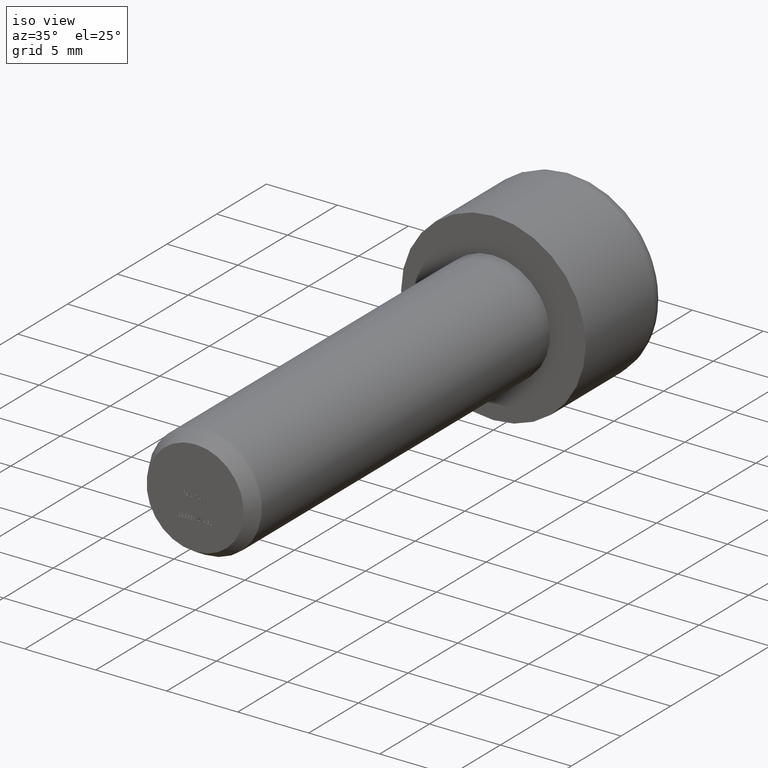
[diagram: clean part render]
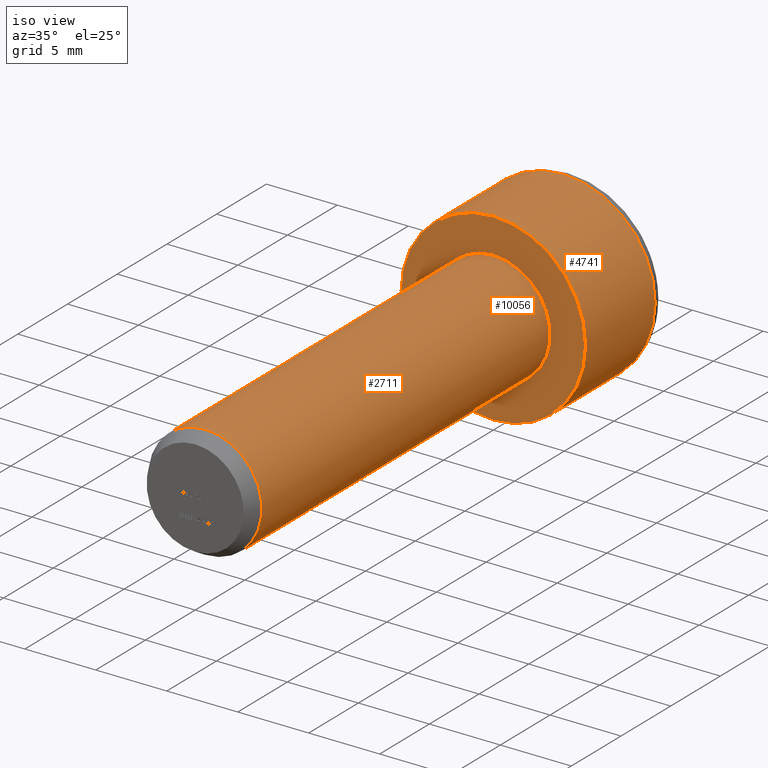
[diagram: same view with one multi-face feature highlighted, each face labeled with its STEP entity id]
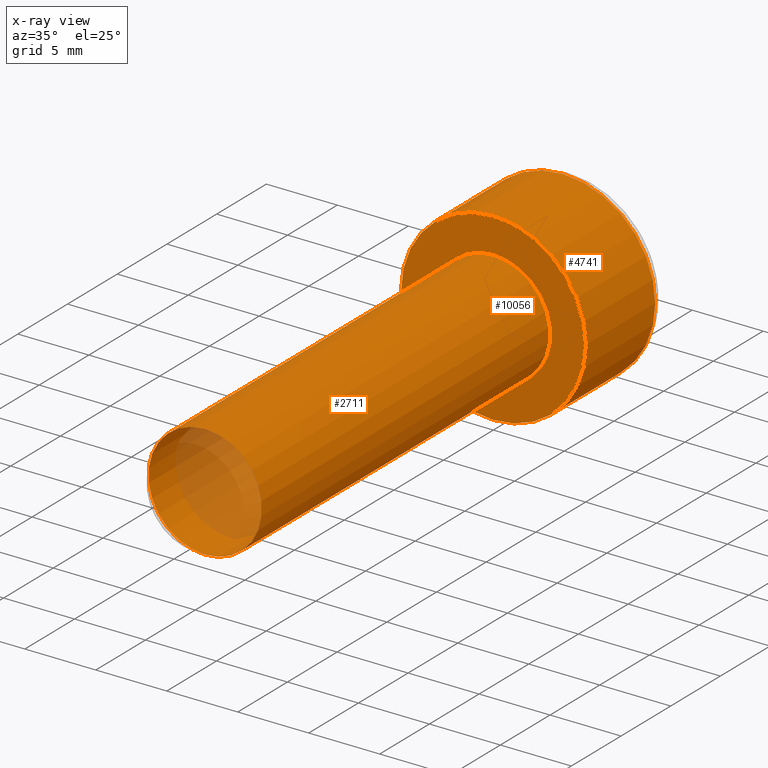
[diagram: x-ray of the same camera — body ghosted, the whole feature saturated]
A machine part, iso view. The highlighted faces form ONE feature: a stepped (counterbored) hole: 2 coaxial cylindrical walls of radii 4 -> 6.5 mm joined by 1 annular planar shoulder face(s). The faces share edges in the B-rep.
The next image is the same camera in x-ray: the body ghosted and the whole hole feature saturated, so the bore chain is visible through the body.
Their STEP definitions:
[1] entity #4741 (Cylinder):
#1107 = CARTESIAN_POINT ( 'NONE',  ( 0.0000000000000000000, 7.000000000000000000, 6.500000000000000900 ) ) ;
#1279 = CYLINDRICAL_SURFACE ( 'NONE', #15521, 6.500000000000000900 ) ;
#1921 = DIRECTION ( 'NONE',  ( -0.0000000000000000000, -1.000000000000000000, -0.0000000000000000000 ) ) ;
#2041 = VERTEX_POINT ( 'NONE', #7377 ) ;
#3053 = VERTEX_POINT ( 'NONE', #1107 ) ;
#3080 = ORIENTED_EDGE ( 'NONE', *, *, #9122, .T. ) ;
#3296 = DIRECTION ( 'NONE',  ( 0.0000000000000000000, 0.0000000000000000000, 1.000000000000000000 ) ) ;
#3331 = CARTESIAN_POINT ( 'NONE',  ( 0.0000000000000000000, 7.000000000000000000, 0.0000000000000000000 ) ) ;
#3768 = EDGE_LOOP ( 'NONE', ( #7017 ) ) ;
#4275 = FACE_OUTER_BOUND ( 'NONE', #6326, .T. ) ;
#4741 = ADVANCED_FACE ( 'NONE', ( #4275, #5492 ), #1279, .T. ) ;
#5492 = FACE_OUTER_BOUND ( 'NONE', #3768, .T. ) ;
#6326 = EDGE_LOOP ( 'NONE', ( #3080 ) ) ;
#7017 = ORIENTED_EDGE ( 'NONE', *, *, #16244, .T. ) ;
#7377 = CARTESIAN_POINT ( 'NONE',  ( 0.0000000000000000000, 0.0000000000000000000, 6.500000000000000900 ) ) ;
#8380 = DIRECTION ( 'NONE',  ( 0.0000000000000000000, 0.0000000000000000000, -1.000000000000000000 ) ) ;
#9122 = EDGE_CURVE ( 'NONE', #3053, #3053, #9578, .T. ) ;
#9578 = CIRCLE ( 'NONE', #14846, 6.500000000000000900 ) ;
#10929 = DIRECTION ( 'NONE',  ( 0.0000000000000000000, 1.000000000000000000, 0.0000000000000000000 ) ) ;
#11076 = DIRECTION ( 'NONE',  ( -0.0000000000000000000, -1.000000000000000000, -0.0000000000000000000 ) ) ;
#12362 = DIRECTION ( 'NONE',  ( 0.0000000000000000000, 0.0000000000000000000, 1.000000000000000000 ) ) ;
#12660 = AXIS2_PLACEMENT_3D ( 'NONE', #13651, #10929, #3296 ) ;
#13651 = CARTESIAN_POINT ( 'NONE',  ( 0.0000000000000000000, 0.0000000000000000000, 0.0000000000000000000 ) ) ;
#14728 = CARTESIAN_POINT ( 'NONE',  ( 0.0000000000000000000, 8.000000000000000000, 0.0000000000000000000 ) ) ;
#14846 = AXIS2_PLACEMENT_3D ( 'NONE', #3331, #11076, #12362 ) ;
#15218 = CIRCLE ( 'NONE', #12660, 6.500000000000000900 ) ;
#15521 = AXIS2_PLACEMENT_3D ( 'NONE', #14728, #1921, #8380 ) ;
#16244 = EDGE_CURVE ( 'NONE', #2041, #2041, #15218, .T. ) ;
[2] entity #2711 (Cylinder):
#148 = EDGE_CURVE ( 'NONE', #8420, #8420, #6561, .T. ) ;
#1309 = FACE_OUTER_BOUND ( 'NONE', #11192, .T. ) ;
#2006 = AXIS2_PLACEMENT_3D ( 'NONE', #11849, #14401, #15932 ) ;
#2011 = CIRCLE ( 'NONE', #2029, 4.000000000000000000 ) ;
#2029 = AXIS2_PLACEMENT_3D ( 'NONE', #3823, #2363, #6399 ) ;
#2363 = DIRECTION ( 'NONE',  ( -0.0000000000000000000, -1.000000000000000000, -0.0000000000000000000 ) ) ;
#2711 = ADVANCED_FACE ( 'NONE', ( #9657, #1309 ), #14263, .T. ) ;
#3823 = CARTESIAN_POINT ( 'NONE',  ( 0.0000000000000000000, 0.0000000000000000000, 0.0000000000000000000 ) ) ;
#4939 = CARTESIAN_POINT ( 'NONE',  ( 0.0000000000000000000, 0.0000000000000000000, 4.000000000000000000 ) ) ;
#6399 = DIRECTION ( 'NONE',  ( 0.0000000000000000000, 0.0000000000000000000, 1.000000000000000000 ) ) ;
#6561 = CIRCLE ( 'NONE', #13746, 4.000000000000000000 ) ;
#8381 = EDGE_CURVE ( 'NONE', #12834, #12834, #2011, .T. ) ;
#8420 = VERTEX_POINT ( 'NONE', #13803 ) ;
#9536 = EDGE_LOOP ( 'NONE', ( #13589 ) ) ;
#9657 = FACE_OUTER_BOUND ( 'NONE', #9536, .T. ) ;
#11128 = ORIENTED_EDGE ( 'NONE', *, *, #8381, .T. ) ;
#11191 = DIRECTION ( 'NONE',  ( 0.0000000000000000000, 1.000000000000000000, 0.0000000000000000000 ) ) ;
#11192 = EDGE_LOOP ( 'NONE', ( #11128 ) ) ;
#11306 = CARTESIAN_POINT ( 'NONE',  ( 0.0000000000000000000, -28.99999999999998900, 0.0000000000000000000 ) ) ;
#11849 = CARTESIAN_POINT ( 'NONE',  ( 0.0000000000000000000, -30.00000000000000000, 0.0000000000000000000 ) ) ;
#12834 = VERTEX_POINT ( 'NONE', #4939 ) ;
#13589 = ORIENTED_EDGE ( 'NONE', *, *, #148, .T. ) ;
#13746 = AXIS2_PLACEMENT_3D ( 'NONE', #11306, #11191, #16349 ) ;
#13803 = CARTESIAN_POINT ( 'NONE',  ( 0.0000000000000000000, -28.99999999999998900, -4.000000000000000000 ) ) ;
#14263 = CYLINDRICAL_SURFACE ( 'NONE', #2006, 4.000000000000000000 ) ;
#14401 = DIRECTION ( 'NONE',  ( -0.0000000000000000000, 1.000000000000000000, -0.0000000000000000000 ) ) ;
#15932 = DIRECTION ( 'NONE',  ( 0.0000000000000000000, 0.0000000000000000000, 1.000000000000000000 ) ) ;
#16349 = DIRECTION ( 'NONE',  ( 0.0000000000000000000, 0.0000000000000000000, -1.000000000000000000 ) ) ;
[3] entity #10056 (Plane):
#1572 = EDGE_LOOP ( 'NONE', ( #14389 ) ) ;
#2011 = CIRCLE ( 'NONE', #2029, 4.000000000000000000 ) ;
#2029 = AXIS2_PLACEMENT_3D ( 'NONE', #3823, #2363, #6399 ) ;
#2041 = VERTEX_POINT ( 'NONE', #7377 ) ;
#2176 = DIRECTION ( 'NONE',  ( 0.0000000000000000000, 1.000000000000000000, 0.0000000000000000000 ) ) ;
#2363 = DIRECTION ( 'NONE',  ( -0.0000000000000000000, -1.000000000000000000, -0.0000000000000000000 ) ) ;
#3296 = DIRECTION ( 'NONE',  ( 0.0000000000000000000, 0.0000000000000000000, 1.000000000000000000 ) ) ;
#3566 = DIRECTION ( 'NONE',  ( 0.0000000000000000000, -0.0000000000000000000, 1.000000000000000000 ) ) ;
#3823 = CARTESIAN_POINT ( 'NONE',  ( 0.0000000000000000000, 0.0000000000000000000, 0.0000000000000000000 ) ) ;
#4935 = ORIENTED_EDGE ( 'NONE', *, *, #8381, .F. ) ;
#4939 = CARTESIAN_POINT ( 'NONE',  ( 0.0000000000000000000, 0.0000000000000000000, 4.000000000000000000 ) ) ;
#6399 = DIRECTION ( 'NONE',  ( 0.0000000000000000000, 0.0000000000000000000, 1.000000000000000000 ) ) ;
#7377 = CARTESIAN_POINT ( 'NONE',  ( 0.0000000000000000000, 0.0000000000000000000, 6.500000000000000900 ) ) ;
#8381 = EDGE_CURVE ( 'NONE', #12834, #12834, #2011, .T. ) ;
#9800 = CARTESIAN_POINT ( 'NONE',  ( 0.0000000000000000000, 0.0000000000000000000, 0.0000000000000000000 ) ) ;
#10056 = ADVANCED_FACE ( 'NONE', ( #14953, #12557 ), #11149, .F. ) ;
#10929 = DIRECTION ( 'NONE',  ( 0.0000000000000000000, 1.000000000000000000, 0.0000000000000000000 ) ) ;
#11149 = PLANE ( 'NONE',  #15074 ) ;
#11299 = EDGE_LOOP ( 'NONE', ( #4935 ) ) ;
#12557 = FACE_OUTER_BOUND ( 'NONE', #1572, .T. ) ;
#12660 = AXIS2_PLACEMENT_3D ( 'NONE', #13651, #10929, #3296 ) ;
#12834 = VERTEX_POINT ( 'NONE', #4939 ) ;
#13651 = CARTESIAN_POINT ( 'NONE',  ( 0.0000000000000000000, 0.0000000000000000000, 0.0000000000000000000 ) ) ;
#14389 = ORIENTED_EDGE ( 'NONE', *, *, #16244, .F. ) ;
#14953 = FACE_BOUND ( 'NONE', #11299, .T. ) ;
#15074 = AXIS2_PLACEMENT_3D ( 'NONE', #9800, #2176, #3566 ) ;
#15218 = CIRCLE ( 'NONE', #12660, 6.500000000000000900 ) ;
#16244 = EDGE_CURVE ( 'NONE', #2041, #2041, #15218, .T. ) ;